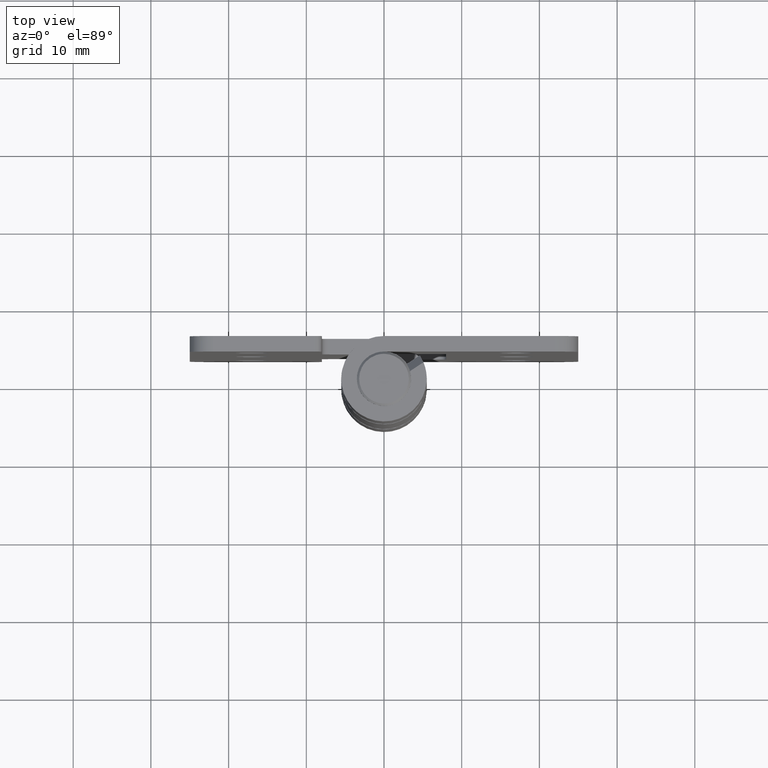
[diagram: clean part render]
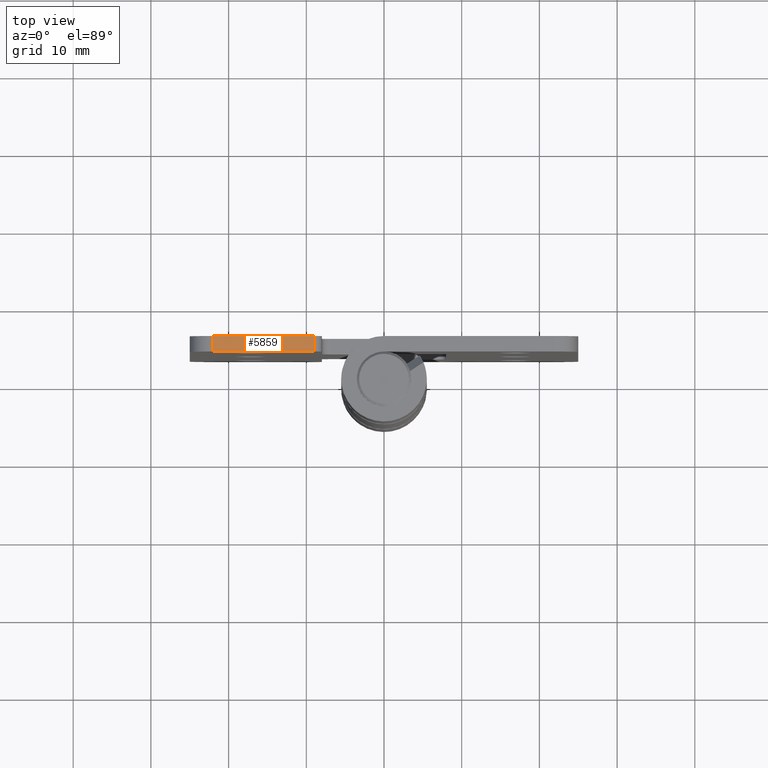
[diagram: same view with one face highlighted and labeled with its STEP entity id]
A machine part, top view. The second image highlights one B-rep face of the part: STEP entity #5859.
In plain terms, the highlighted face is a freeform B-spline surface patch.
Its self-contained STEP definition (entity closure, byte-faithful):
#5601=CARTESIAN_POINT('',(-9.0,3.500000000000230,78.0));
#5602=VERTEX_POINT('',#5601);
#5621=CARTESIAN_POINT('',(-9.0,5.500000000000229,78.0));
#5622=VERTEX_POINT('',#5621);
#5634=CARTESIAN_POINT('',(-9.0,3.500000000000230,78.0));
#5635=CARTESIAN_POINT('',(-9.0,5.500000000000229,78.0));
#5636=QUASI_UNIFORM_CURVE('',1,(#5634,#5635),.UNSPECIFIED.,.F.,.U.);
#5637=EDGE_CURVE('',#5602,#5622,#5636,.T.);
#5658=CARTESIAN_POINT('',(-22.000000000000249,5.500000000000229,78.0));
#5659=VERTEX_POINT('',#5658);
#5681=CARTESIAN_POINT('',(-22.000000000000249,3.500000000000230,78.0));
#5682=VERTEX_POINT('',#5681);
#5696=CARTESIAN_POINT('',(-22.000000000000249,5.500000000000229,78.0));
#5697=CARTESIAN_POINT('',(-22.000000000000249,3.500000000000230,78.0));
#5698=QUASI_UNIFORM_CURVE('',1,(#5696,#5697),.UNSPECIFIED.,.F.,.U.);
#5699=EDGE_CURVE('',#5659,#5682,#5698,.T.);
#5840=CARTESIAN_POINT('',(-22.649349974803741,5.599899996123842,78.0));
#5841=CARTESIAN_POINT('',(-8.350649676509335,5.599899996123842,78.0));
#5842=CARTESIAN_POINT('',(-22.649349974803741,3.400099950232438,78.0));
#5843=CARTESIAN_POINT('',(-8.350649676509335,3.400099950232438,78.0));
#5844=B_SPLINE_SURFACE_WITH_KNOTS('',1,1,((#5840,#5842),(#5841,#5843)),.UNSPECIFIED.,.F.,.F.,.U.,(2,2),(2,2),(0.0,14.298700298294399),(0.0,2.199800045891404),.UNSPECIFIED.);
#5845=CARTESIAN_POINT('',(-22.000000000000249,3.500000000000230,78.0));
#5846=CARTESIAN_POINT('',(-9.0,3.500000000000230,78.0));
#5847=QUASI_UNIFORM_CURVE('',1,(#5845,#5846),.UNSPECIFIED.,.F.,.U.);
#5848=EDGE_CURVE('',#5682,#5602,#5847,.T.);
#5849=ORIENTED_EDGE('',*,*,#5848,.T.);
#5850=ORIENTED_EDGE('',*,*,#5637,.T.);
#5851=CARTESIAN_POINT('',(-9.0,5.500000000000229,78.0));
#5852=CARTESIAN_POINT('',(-22.000000000000249,5.500000000000229,78.0));
#5853=QUASI_UNIFORM_CURVE('',1,(#5851,#5852),.UNSPECIFIED.,.F.,.U.);
#5854=EDGE_CURVE('',#5622,#5659,#5853,.T.);
#5855=ORIENTED_EDGE('',*,*,#5854,.T.);
#5856=ORIENTED_EDGE('',*,*,#5699,.T.);
#5857=EDGE_LOOP('',(#5849,#5850,#5855,#5856));
#5858=FACE_OUTER_BOUND('',#5857,.T.);
#5859=ADVANCED_FACE('',(#5858),#5844,.F.);